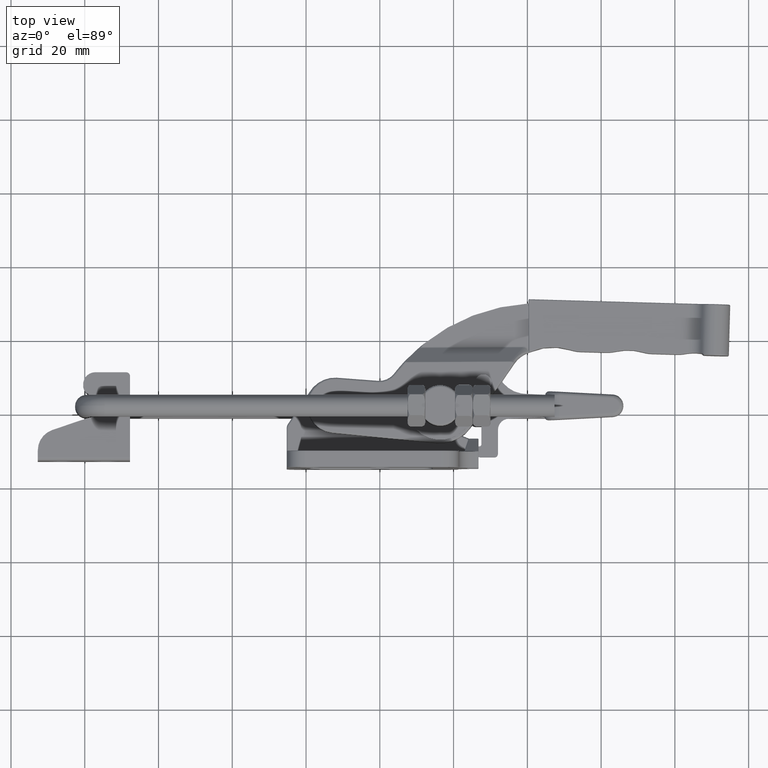
[diagram: clean part render]
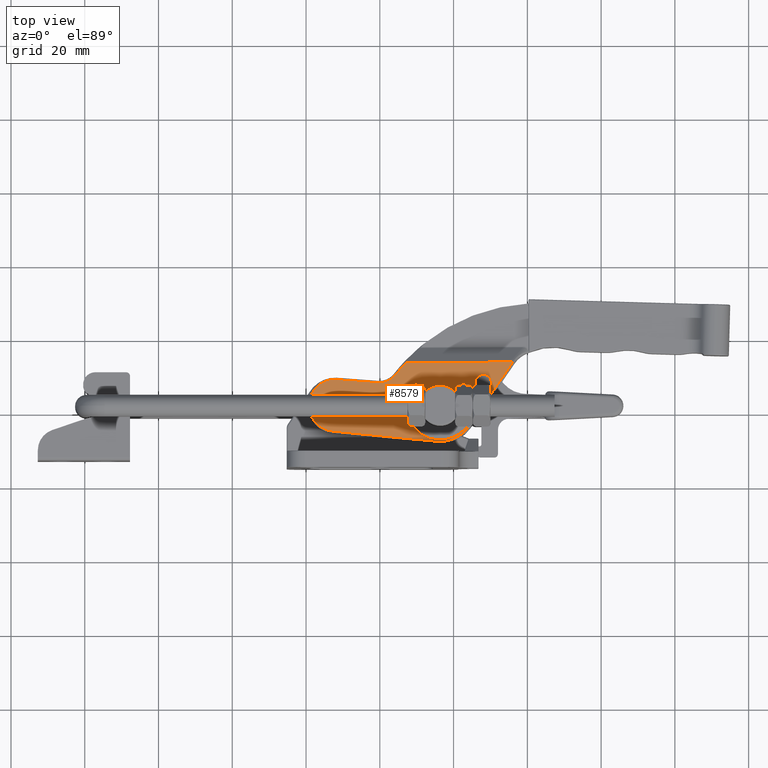
[diagram: same view with one face highlighted and labeled with its STEP entity id]
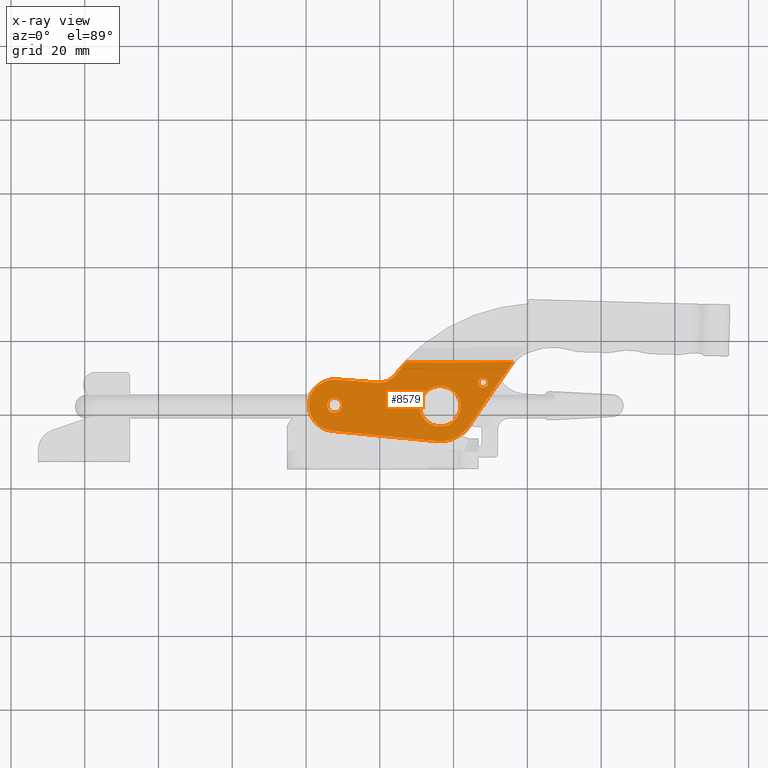
[diagram: x-ray of the same camera — body ghosted, the highlighted face saturated]
A machine part, top view. The second image highlights one B-rep face of the part: STEP entity #8579.
The next image is the same camera in x-ray: the body ghosted, the highlighted face saturated — about 0% of this face is hidden behind the body in this view.
In plain terms, the highlighted planar face has unit normal (0, 0, 1).
Its self-contained STEP definition (entity closure, byte-faithful):
#390=ELLIPSE('',#9392,0.307645716347789,0.183684109092405);
#391=ELLIPSE('',#9393,3.53890321383963,1.90000392962825);
#449=FACE_BOUND('',#2818,.T.);
#450=FACE_BOUND('',#2819,.T.);
#451=FACE_BOUND('',#2820,.T.);
#849=PLANE('',#9387);
#1155=LINE('',#17852,#1597);
#1156=LINE('',#17856,#1598);
#1157=LINE('',#17860,#1599);
#1158=LINE('',#17865,#1600);
#1597=VECTOR('',#11167,11.2315610928694);
#1598=VECTOR('',#11170,28.4921483490271);
#1599=VECTOR('',#11173,20.9246008092595);
#1600=VECTOR('',#11178,28.3149093633902);
#2249=FACE_OUTER_BOUND('',#2817,.T.);
#2817=EDGE_LOOP('',(#6912,#6913,#6914,#6915,#6916,#6917,#6918,#6919,#6920,
#6921));
#2818=EDGE_LOOP('',(#6922));
#2819=EDGE_LOOP('',(#6923));
#2820=EDGE_LOOP('',(#6924));
#3371=CIRCLE('',#9376,2.);
#3380=CIRCLE('',#9388,49.5);
#3381=CIRCLE('',#9389,5.5);
#3382=CIRCLE('',#9390,7.);
#3383=CIRCLE('',#9391,9.500000000004);
#3384=CIRCLE('',#9394,5.5);
#3385=CIRCLE('',#9395,1.3);
#3975=VERTEX_POINT('',#17815);
#3989=VERTEX_POINT('',#17846);
#3990=VERTEX_POINT('',#17847);
#3991=VERTEX_POINT('',#17849);
#3992=VERTEX_POINT('',#17851);
#3993=VERTEX_POINT('',#17853);
#3994=VERTEX_POINT('',#17855);
#3995=VERTEX_POINT('',#17857);
#3996=VERTEX_POINT('',#17859);
#3997=VERTEX_POINT('',#17861);
#3998=VERTEX_POINT('',#17863);
#3999=VERTEX_POINT('',#17866);
#4000=VERTEX_POINT('',#17868);
#5025=EDGE_CURVE('',#3975,#3975,#3371,.T.);
#5039=EDGE_CURVE('',#3989,#3990,#3380,.T.);
#5040=EDGE_CURVE('',#3991,#3989,#3381,.T.);
#5041=EDGE_CURVE('',#3992,#3991,#1155,.T.);
#5042=EDGE_CURVE('',#3993,#3992,#3382,.T.);
#5043=EDGE_CURVE('',#3994,#3993,#1156,.T.);
#5044=EDGE_CURVE('',#3995,#3994,#3383,.T.);
#5045=EDGE_CURVE('',#3996,#3995,#1157,.T.);
#5046=EDGE_CURVE('',#3997,#3996,#390,.T.);
#5047=EDGE_CURVE('',#3998,#3997,#391,.T.);
#5048=EDGE_CURVE('',#3990,#3998,#1158,.T.);
#5049=EDGE_CURVE('',#3999,#3999,#3384,.T.);
#5050=EDGE_CURVE('',#4000,#4000,#3385,.T.);
#6912=ORIENTED_EDGE('',*,*,#5039,.F.);
#6913=ORIENTED_EDGE('',*,*,#5040,.F.);
#6914=ORIENTED_EDGE('',*,*,#5041,.F.);
#6915=ORIENTED_EDGE('',*,*,#5042,.F.);
#6916=ORIENTED_EDGE('',*,*,#5043,.F.);
#6917=ORIENTED_EDGE('',*,*,#5044,.F.);
#6918=ORIENTED_EDGE('',*,*,#5045,.F.);
#6919=ORIENTED_EDGE('',*,*,#5046,.F.);
#6920=ORIENTED_EDGE('',*,*,#5047,.F.);
#6921=ORIENTED_EDGE('',*,*,#5048,.F.);
#6922=ORIENTED_EDGE('',*,*,#5049,.F.);
#6923=ORIENTED_EDGE('',*,*,#5025,.F.);
#6924=ORIENTED_EDGE('',*,*,#5050,.F.);
#8579=ADVANCED_FACE('',(#2249,#449,#450,#451),#849,.T.);
#9376=AXIS2_PLACEMENT_3D('',#17816,#11134,#11135);
#9387=AXIS2_PLACEMENT_3D('',#17845,#11161,#11162);
#9388=AXIS2_PLACEMENT_3D('',#17848,#11163,#11164);
#9389=AXIS2_PLACEMENT_3D('',#17850,#11165,#11166);
#9390=AXIS2_PLACEMENT_3D('',#17854,#11168,#11169);
#9391=AXIS2_PLACEMENT_3D('',#17858,#11171,#11172);
#9392=AXIS2_PLACEMENT_3D('',#17862,#11174,#11175);
#9393=AXIS2_PLACEMENT_3D('',#17864,#11176,#11177);
#9394=AXIS2_PLACEMENT_3D('',#17867,#11179,#11180);
#9395=AXIS2_PLACEMENT_3D('',#17869,#11181,#11182);
#11134=DIRECTION('center_axis',(0.,0.,1.));
#11135=DIRECTION('ref_axis',(1.,0.,0.));
#11161=DIRECTION('center_axis',(0.,0.,1.));
#11162=DIRECTION('ref_axis',(1.,0.,0.));
#11163=DIRECTION('center_axis',(0.,0.,-1.));
#11164=DIRECTION('ref_axis',(-0.78470701863746,0.619866836426268,0.));
#11165=DIRECTION('center_axis',(0.,0.,1.));
#11166=DIRECTION('ref_axis',(-0.0806686066374522,-0.996740977337228,0.));
#11167=DIRECTION('',(0.99674097733716,-0.0806686066382868,0.));
#11168=DIRECTION('center_axis',(0.,0.,-1.));
#11169=DIRECTION('ref_axis',(-0.103095664750196,-0.994671445206765,0.));
#11170=DIRECTION('',(-0.994671445206754,0.103095664750306,0.));
#11171=DIRECTION('center_axis',(0.,0.,-1.));
#11172=DIRECTION('ref_axis',(0.822868704049021,-0.568231551303414,0.));
#11173=DIRECTION('',(-0.568231551295379,-0.82286870405457,0.));
#11174=DIRECTION('center_axis',(9.58838091295149E-13,1.93818020337163E-12,
-1.));
#11175=DIRECTION('ref_axis',(0.575427403374488,0.817852861733512,2.13688793901325E-12));
#11176=DIRECTION('center_axis',(0.,0.,-1.));
#11177=DIRECTION('ref_axis',(0.662914786267385,0.748694855163348,0.));
#11178=DIRECTION('',(1.,-2.039476236357E-12,0.));
#11179=DIRECTION('center_axis',(0.,0.,1.));
#11180=DIRECTION('ref_axis',(1.,0.,0.));
#11181=DIRECTION('center_axis',(0.,0.,1.));
#11182=DIRECTION('ref_axis',(1.,0.,0.));
#17815=CARTESIAN_POINT('',(-2.,0.,6.65));
#17816=CARTESIAN_POINT('Origin',(0.,0.,6.65));
#17845=CARTESIAN_POINT('Origin',(0.,0.,6.65));
#17846=CARTESIAN_POINT('',(16.51920336621,8.143960232626,6.65));
#17847=CARTESIAN_POINT('',(19.4118387380674,11.4873275869601,6.65));
#17848=CARTESIAN_POINT('Origin',(55.36220078872,-22.53944817044,6.65));
#17849=CARTESIAN_POINT('',(11.75963742719,6.071152457616,6.65));
#17850=CARTESIAN_POINT('Origin',(12.2033147637,11.55322783297,6.65));
#17851=CARTESIAN_POINT('',(0.5646802464629,6.97718684137,6.65));
#17852=CARTESIAN_POINT('',(0.5646802464629,6.97718684137,6.65));
#17853=CARTESIAN_POINT('',(-0.7216696532516,-6.962700116447,6.65));
#17854=CARTESIAN_POINT('Origin',(0.,0.,6.65));
#17855=CARTESIAN_POINT('',(27.61865672212,-9.900117090658,6.65));
#17856=CARTESIAN_POINT('',(27.61865672212,-9.900117090658,6.65));
#17857=CARTESIAN_POINT('',(36.41531822572,-5.848938098576,6.65));
#17858=CARTESIAN_POINT('Origin',(28.59806553725,-0.4507383611913,6.65));
#17859=CARTESIAN_POINT('',(48.3053366031401,11.3692610526557,6.65000000000017));
#17860=CARTESIAN_POINT('',(48.3053366038,11.3692610522,6.65));
#17861=CARTESIAN_POINT('',(48.2866527168463,11.3796498287716,6.65000000000019));
#17862=CARTESIAN_POINT('Origin',(48.1290962172505,11.1171032642977,6.64999999999962));
#17863=CARTESIAN_POINT('',(47.7267481014576,11.4873275876511,6.65));
#17864=CARTESIAN_POINT('Origin',(46.2187159419738,8.55362622224375,6.65));
#17865=CARTESIAN_POINT('',(19.4118387381,11.48732758771,6.65));
#17866=CARTESIAN_POINT('',(23.09806553725,-0.4507383611913,6.65));
#17867=CARTESIAN_POINT('Origin',(28.59806553725,-0.4507383611913,6.65));
#17868=CARTESIAN_POINT('',(39.00806553725,5.879261638809,6.65));
#17869=CARTESIAN_POINT('Origin',(40.30806553725,5.879261638809,6.65));